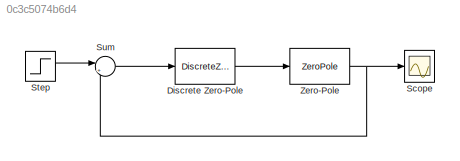
MODEL slx_0c3c5074b6d4
KIND model
CONFIG AbsTol = auto
CONFIG EnableMultiTasking = off
CONFIG FixedStep = auto
CONFIG MaxStep = auto
CONFIG MinStep = auto
CONFIG RelTol = 1e-3
CONFIG SampleTimeConstraint = Unconstrained
CONFIG SolverName = VariableStepAuto
CONFIG StartTime = 0.0
CONFIG StopTime = 10.0
BLOCK [DiscreteZeroPole] Discrete Zero-Pole
  Gain = 40
  Poles = [0]
  SampleTime = -1
  Zeros = [-4]
BLOCK [Scope] Scope
  Floating = off
  NumInputPorts = 1
  Ports = [1]
  ScopeSpecificationString = Simulink.scopes.TimeScopeBlockCfg('CurrentConfiguration', extmgr.ConfigurationSet(extmgr.Configuration('Core','General UI',true),extmgr.Configuration('Core','Source UI',true),extmgr.Configuration('Sources','WiredSimulink',true),extmgr.Configuration('Visuals','Time Domain',true,'SerializedDisplays',{struct('MinYLimReal','-30173480369915551014205238869693099795283968.00000','MaxYLimReal','1336764894...<+1741ch>
BLOCK [Step] Step
  After = 2*pi/180
  SampleTime = 0
BLOCK [Sum] Sum
  Inputs = |+-
  Ports = [2, 1]
BLOCK [ZeroPole] Zero-Pole
  ContinuousStateAttributes = 'Planta'
  Poles = [0 4 4]
  Zeros = [-2 -2]
LINE Discrete Zero-Pole:1 -> Zero-Pole:1
LINE Step:1 -> Sum:1
LINE Sum:1 -> Discrete Zero-Pole:1
NET Zero-Pole:1 -> Scope:1, Sum:2
note: NET lines group one-source signal fan-out (src -> all destinations, sorted); 1:1 wires keep LINE
